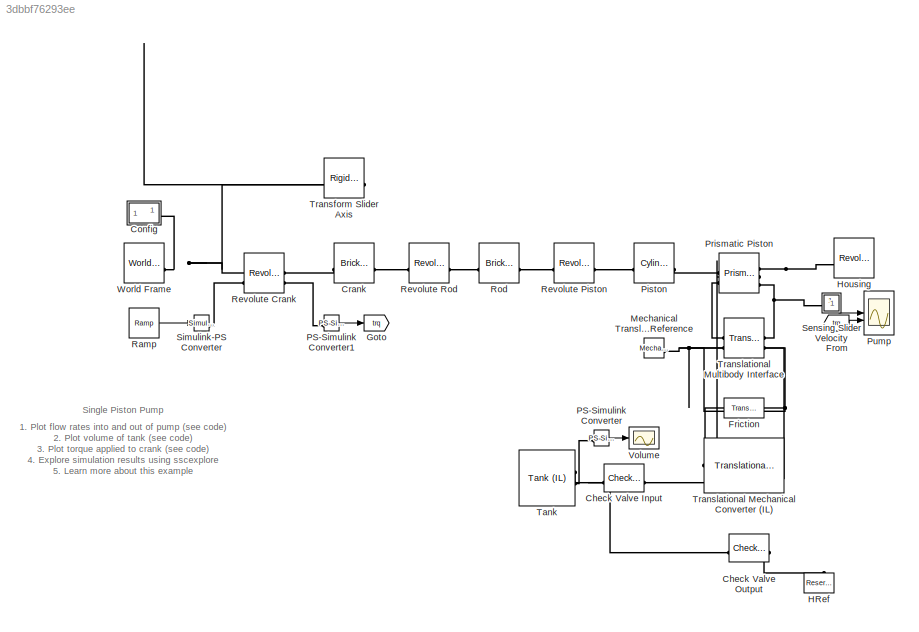
MODEL slx_3dbbf76293ee
KIND model
CONFIG AbsTol = 1e-3
CONFIG EnableMultiTasking = on
CONFIG FixedStep = auto
CONFIG MaxStep = auto
CONFIG MinStep = auto
CONFIG RelTol = 1e-3
CONFIG SampleTimeConstraint = Unconstrained
CONFIG SolverName = VariableStepAuto
CONFIG StartTime = 0.0
CONFIG StopTime = 10.0
BLOCK [Reference] Check Valve Input  REF=SimscapeFluids_lib/Isothermal Liquid/Valves & Orifices/Directional Control
Valves/Check Valve (IL)
  LibrarySourceBlock = sh_lib/Valves/Directional Valves/Check Valve
  SourceBlock = SimscapeFluids_lib/Isothermal Liquid/Valves & Orifices/Directional Control\nValves/Check Valve (IL)
  SourceType = Check Valve (IL)
BLOCK [Reference] Check Valve Output  REF=SimscapeFluids_lib/Isothermal Liquid/Valves & Orifices/Directional Control
Valves/Check Valve (IL)
  LibrarySourceBlock = sh_lib/Valves/Directional Valves/Check Valve
  SourceBlock = SimscapeFluids_lib/Isothermal Liquid/Valves & Orifices/Directional Control\nValves/Check Valve (IL)
  SourceType = Check Valve (IL)
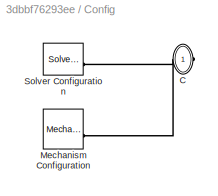
BLOCK [SubSystem] Config
BLOCK [PMIOPort] Config/C
  Side = Right
BLOCK [Reference] Config/Mechanism Configuration  REF=sm_lib/Utilities/Mechanism
Configuration
  SourceBlock = sm_lib/Utilities/Mechanism\nConfiguration
  SourceType = Mechanism\nConfiguration
BLOCK [Reference] Config/Solver Configuration  REF=nesl_utility/Solver
Configuration
  SourceBlock = nesl_utility/Solver\nConfiguration
  SourceType = Solver\nConfiguration
BLOCK [Reference] Crank  REF=sm_lib/Body Elements/Brick Solid
  SourceBlock = sm_lib/Body Elements/Brick Solid
  SourceType = Brick Solid
BLOCK [Reference] Friction  REF=fl_lib/Mechanical/Translational
Elements/Translational
Friction
  SourceBlock = fl_lib/Mechanical/Translational\nElements/Translational\nFriction
  SourceType = Translational\nFriction
BLOCK [From] From
  GotoTag = trq
BLOCK [Goto] Goto
  GotoTag = trq
BLOCK [Reference] HRef  REF=fl_lib/Isothermal Liquid/Elements/Reservoir (IL)
  LibrarySourceBlock = fl_lib/Hydraulic/Hydraulic Elements/Hydraulic Reference
  NameLocation = right
  SourceBlock = fl_lib/Isothermal Liquid/Elements/Reservoir (IL)
  SourceType = Reservoir (IL)
BLOCK [Reference] Housing  REF=sm_lib/Body Elements/Revolved Solid
  NameLocation = top
  SourceBlock = sm_lib/Body Elements/Revolved Solid
  SourceType = Revolved Solid
BLOCK [Reference] Mechanical Translational Reference  REF=fl_lib/Mechanical/Translational
Elements/Mechanical
Translational
Reference
  SourceBlock = fl_lib/Mechanical/Translational\nElements/Mechanical\nTranslational\nReference
  SourceType = Mechanical\nTranslational\nReference
BLOCK [Reference] PS-Simulink Converter  REF=nesl_utility/PS-Simulink
Converter
  SourceBlock = nesl_utility/PS-Simulink\nConverter
  SourceType = PS-Simulink\nConverter
BLOCK [Reference] PS-Simulink Converter1  REF=nesl_utility/PS-Simulink
Converter
  SourceBlock = nesl_utility/PS-Simulink\nConverter
  SourceType = PS-Simulink\nConverter
BLOCK [Reference] Piston  REF=sm_lib/Body Elements/Cylindrical Solid
  NameLocation = top
  SourceBlock = sm_lib/Body Elements/Cylindrical Solid
  SourceType = Cylindrical Solid
BLOCK [Reference] Prismatic Piston  REF=sm_lib/Joints/Prismatic
Joint
  NameLocation = top
  SourceBlock = sm_lib/Joints/Prismatic\nJoint
  SourceType = Prismatic\nJoint
BLOCK [Scope] Pump
  Floating = off
  NumInputPorts = 2
  ScopeSpecificationString = Simulink.scopes.TimeScopeBlockCfg('CurrentConfiguration', extmgr.ConfigurationSet(extmgr.Configuration('Core','General UI',true),extmgr.Configuration('Core','Source UI',true),extmgr.Configuration('Sources','WiredSimulink',true,'DataLoggingLimitDataPoints',true,'DataLoggingSaveFormat','Array','DataLoggingDecimation','1','DataLoggingDecimateData',true,'DataLoggingVariableName','ScopeData1'),extmgr.C...<+2245ch>
BLOCK [Reference] Ramp  REF=simulink/Sources/Ramp
  SourceBlock = simulink/Sources/Ramp
  SourceType = Ramp
BLOCK [Reference] Revolute Crank  REF=sm_lib/Joints/Revolute Joint
  NameLocation = top
  SourceBlock = sm_lib/Joints/Revolute Joint
  SourceType = Revolute Joint
BLOCK [Reference] Revolute Piston  REF=sm_lib/Joints/Revolute Joint
  NameLocation = top
  SourceBlock = sm_lib/Joints/Revolute Joint
  SourceType = Revolute Joint
BLOCK [Reference] Revolute Rod  REF=sm_lib/Joints/Revolute Joint
  NameLocation = top
  SourceBlock = sm_lib/Joints/Revolute Joint
  SourceType = Revolute Joint
BLOCK [Reference] Rod  REF=sm_lib/Body Elements/Brick Solid
  SourceBlock = sm_lib/Body Elements/Brick Solid
  SourceType = Brick Solid
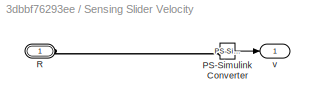
BLOCK [SubSystem] Sensing Slider Velocity
BLOCK [Reference] Sensing Slider Velocity/PS-Simulink Converter  REF=nesl_utility/PS-Simulink
Converter
  SourceBlock = nesl_utility/PS-Simulink\nConverter
  SourceType = PS-Simulink\nConverter
BLOCK [PMIOPort] Sensing Slider Velocity/R
  Side = Left
BLOCK [Outport] Sensing Slider Velocity/v
  VectorParamsAs1DForOutWhenUnconnected = off
BLOCK [Reference] Simulink-PS Converter  REF=nesl_utility/Simulink-PS
Converter
  SourceBlock = nesl_utility/Simulink-PS\nConverter
  SourceType = Simulink-PS\nConverter
BLOCK [Reference] Tank  REF=SimscapeFluids_lib/Isothermal Liquid/Tanks & Accumulators/Tank (IL)
  LibrarySourceBlock = sh_lib/Low-Pressure Blocks/Tank
  SourceBlock = SimscapeFluids_lib/Isothermal Liquid/Tanks & Accumulators/Tank (IL)
  SourceType = Tank (IL)
BLOCK [Reference] Transform Slider Axis  REF=sm_lib/Frames and
Transforms/Rigid
Transform
  SourceBlock = sm_lib/Frames and\nTransforms/Rigid\nTransform
  SourceType = Rigid\nTransform
BLOCK [Reference] Translational Mechanical Converter (IL)  REF=fl_lib/Isothermal Liquid/Elements/Translational
Mechanical Converter
(IL)
  SourceBlock = fl_lib/Isothermal Liquid/Elements/Translational\nMechanical Converter\n(IL)
  SourceType = Translational\nMechanical Converter\n(IL)
BLOCK [Reference] Translational Multibody Interface  REF=fl_lib/Mechanical/Multibody Interfaces/Translational
Multibody Interface
  SourceBlock = fl_lib/Mechanical/Multibody Interfaces/Translational\nMultibody Interface
  SourceType = Translational\nMultibody Interface
BLOCK [Scope] Volume
  Floating = off
  NameLocation = top
  NumInputPorts = 1
  ScopeSpecificationString = Simulink.scopes.TimeScopeBlockCfg('CurrentConfiguration', extmgr.ConfigurationSet(extmgr.Configuration('Core','General UI',true),extmgr.Configuration('Core','Source UI',true),extmgr.Configuration('Sources','WiredSimulink',true,'DataLoggingVariableName','ScopeData1'),extmgr.Configuration('Visuals','Time Domain',true,'SerializedDisplays',{struct('MinYLimReal','0.01973','MaxYLimReal','0.02003','YLabe...<+1512ch>
BLOCK [Reference] World Frame  REF=sm_lib/Frames and
Transforms/World Frame
  SourceBlock = sm_lib/Frames and\nTransforms/World Frame
  SourceType = World Frame
ANNOTATION (root): 1. Plot flow rates into and out of pump ( see code ) 2. Plot volume of tank ( see code ) 3. Plot torque applied to crank ( see code ) 4. Explore simulation results using sscexplore 5. Learn more about this example
ANNOTATION (root): Single Piston Pump
LINE From:1 -> Pump:2
LINE PS-Simulink Converter1:1 -> Goto:1
LINE PS-Simulink Converter:1 -> Volume:1
LINE Ramp:1 -> Simulink-PS Converter:1
LINE Sensing Slider Velocity/PS-Simulink Converter:1 -> Sensing Slider Velocity/v:1
LINE Sensing Slider Velocity:1 -> Pump:1
PLINE Check Valve Input:LConn1 -- Tank:LConn1
PNET net1: Check Valve Input:RConn1 -- Check Valve Output:LConn1 -- Translational Mechanical Converter (IL):LConn1
PLINE Check Valve Output:RConn1 -- HRef:LConn1
PNET net2: Config/C:RConn1 -- Config/Mechanism Configuration:RConn1 -- Config/Solver Configuration:RConn1
PNET net3: Config:RConn1 -- Revolute Crank:LConn1 -- Transform Slider Axis:LConn1 -- World Frame:RConn1
PLINE Crank:LConn1 -- Revolute Crank:RConn1
PLINE Crank:RConn1 -- Revolute Rod:LConn1
PNET net4: Friction:LConn1 -- Translational Mechanical Converter (IL):RConn2 -- Translational Multibody Interface:RConn2
PNET net5: Friction:RConn1 -- Mechanical Translational Reference:LConn1 -- Translational Mechanical Converter (IL):LConn2 -- Translational Multibody Interface:LConn2
PNET net6: Housing:LConn1 -- Prismatic Piston:RConn1 -- Transform Slider Axis:RConn1
PLINE PS-Simulink Converter1:LConn1 -- Revolute Crank:RConn2
PLINE PS-Simulink Converter:LConn1 -- Tank:LConn2
PLINE Piston:LConn1 -- Revolute Piston:RConn1
PLINE Piston:RConn1 -- Prismatic Piston:LConn1
PLINE Prismatic Piston:LConn2 -- Translational Multibody Interface:LConn1
PLINE Prismatic Piston:RConn2 -- Translational Mechanical Converter (IL):RConn1
PNET net7: Prismatic Piston:RConn3 -- Sensing Slider Velocity:LConn1 -- Translational Multibody Interface:RConn1
PLINE Revolute Crank:LConn2 -- Simulink-PS Converter:RConn1
PLINE Revolute Piston:LConn1 -- Rod:RConn1
PLINE Revolute Rod:RConn1 -- Rod:LConn1
PLINE Sensing Slider Velocity/PS-Simulink Converter:LConn1 -- Sensing Slider Velocity/R:RConn1
note: PNET lines group multi-terminal physical nets as a canonical sorted terminal list (undirected conserving connections); 2-terminal nets keep the pairwise PLINE form
